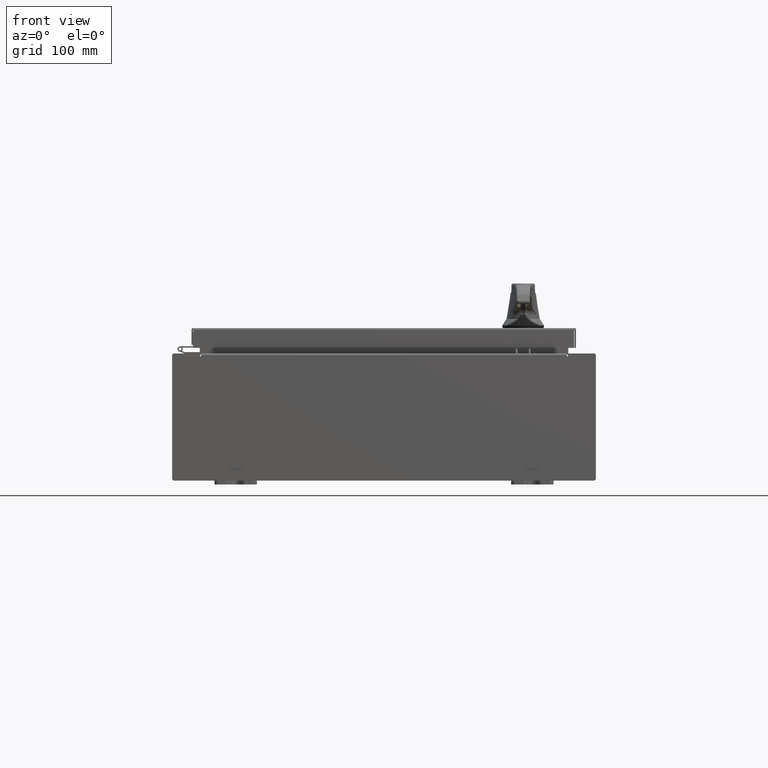
[diagram: clean part render]
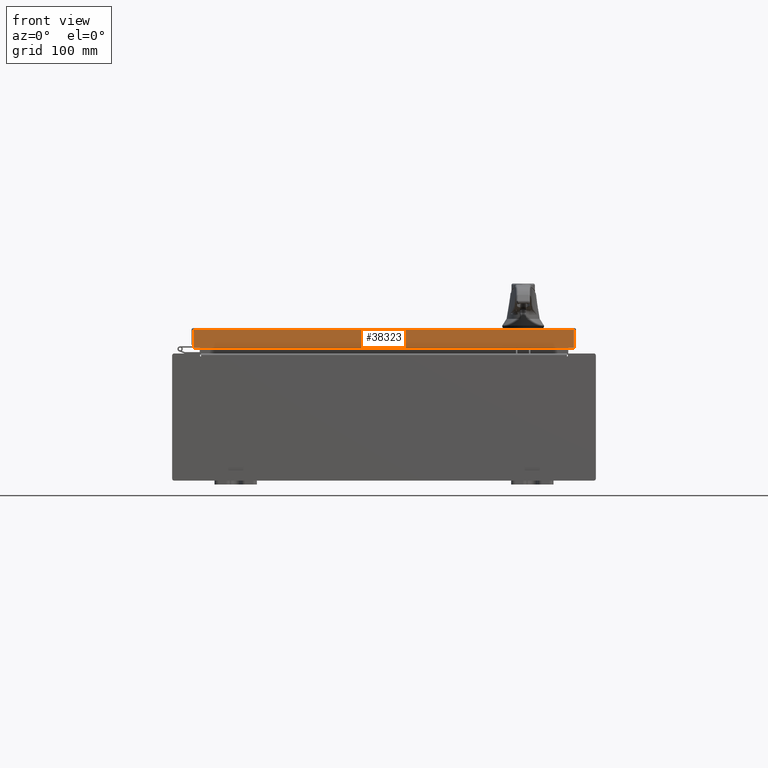
[diagram: same view with one face highlighted and labeled with its STEP entity id]
A machine part, front view. The second image highlights one B-rep face of the part: STEP entity #38323.
In plain terms, the highlighted planar face has unit normal (-0, 1, -0).
Its self-contained STEP definition (entity closure, byte-faithful):
#2893 = VERTEX_POINT ( 'NONE', #25573 ) ;
#4388 = DIRECTION ( 'NONE',  ( -1.000000000000000000, -1.203722403024570700E-016, 1.203722403024570700E-016 ) ) ;
#8788 = VECTOR ( 'NONE', #29191, 39.37007874015748100 ) ;
#11094 = EDGE_LOOP ( 'NONE', ( #36382, #71322, #70045, #52253 ) ) ;
#17404 = PLANE ( 'NONE',  #76811 ) ;
#18193 = LINE ( 'NONE', #73659, #81811 ) ;
#24296 = VERTEX_POINT ( 'NONE', #99581 ) ;
#24436 = FACE_OUTER_BOUND ( 'NONE', #11094, .T. ) ;
#25573 = CARTESIAN_POINT ( 'NONE',  ( 8.989157864376267100, -11.09400000000000300, -0.9376999999999997600 ) ) ;
#26342 = VERTEX_POINT ( 'NONE', #98940 ) ;
#27408 = VECTOR ( 'NONE', #46455, 39.37007874015748100 ) ;
#29191 = DIRECTION ( 'NONE',  ( 1.000000000000000000, 1.203722403024570700E-016, -1.203722403024570700E-016 ) ) ;
#31805 = LINE ( 'NONE', #37563, #8788 ) ;
#35712 = EDGE_CURVE ( 'NONE', #26342, #2893, #50375, .T. ) ;
#36382 = ORIENTED_EDGE ( 'NONE', *, *, #57804, .F. ) ;
#37563 = CARTESIAN_POINT ( 'NONE',  ( 9.077999999999999400, -11.09400000000000100, -0.08770000000000008300 ) ) ;
#38323 = ADVANCED_FACE ( 'NONE', ( #24436 ), #17404, .F. ) ;
#43535 = DIRECTION ( 'NONE',  ( 0.0000000000000000000, 2.532419924601866100E-015, 1.000000000000000000 ) ) ;
#46455 = DIRECTION ( 'NONE',  ( -0.0000000000000000000, -2.532419924601866100E-015, -1.000000000000000000 ) ) ;
#50375 = LINE ( 'NONE', #63489, #27408 ) ;
#52253 = ORIENTED_EDGE ( 'NONE', *, *, #35712, .F. ) ;
#52966 = CARTESIAN_POINT ( 'NONE',  ( -8.989157864376267100, -11.09400000000000700, -0.9376999999999976500 ) ) ;
#55293 = DIRECTION ( 'NONE',  ( 0.0000000000000000000, -2.532419924601866100E-015, -1.000000000000000000 ) ) ;
#57804 = EDGE_CURVE ( 'NONE', #24296, #26342, #31805, .T. ) ;
#60565 = CARTESIAN_POINT ( 'NONE',  ( 1.335409633915462200E-015, -11.09400000000000100, 2.835548029954469000E-014 ) ) ;
#63489 = CARTESIAN_POINT ( 'NONE',  ( 8.989157864376267100, -11.09400000000000100, -0.07469999999999980800 ) ) ;
#70045 = ORIENTED_EDGE ( 'NONE', *, *, #103129, .F. ) ;
#70866 = CARTESIAN_POINT ( 'NONE',  ( -8.989157864376267100, -11.09400000000000100, 2.835548029954469300E-014 ) ) ;
#71322 = ORIENTED_EDGE ( 'NONE', *, *, #100643, .T. ) ;
#73659 = CARTESIAN_POINT ( 'NONE',  ( 9.077999999999999400, -11.09400000000000300, -0.9376999999999997600 ) ) ;
#76811 = AXIS2_PLACEMENT_3D ( 'NONE', #60565, #95479, #43535 ) ;
#81811 = VECTOR ( 'NONE', #4388, 39.37007874015748100 ) ;
#95479 = DIRECTION ( 'NONE',  ( -1.203722403024573700E-016, 1.000000000000000000, -2.532419924601866100E-015 ) ) ;
#98940 = CARTESIAN_POINT ( 'NONE',  ( 8.989157864376267100, -11.09400000000000100, -0.08769999999999898700 ) ) ;
#99433 = VERTEX_POINT ( 'NONE', #52966 ) ;
#99581 = CARTESIAN_POINT ( 'NONE',  ( -8.989157864376267100, -11.09400000000000100, -0.08769999999999791900 ) ) ;
#99809 = VECTOR ( 'NONE', #55293, 39.37007874015748100 ) ;
#100643 = EDGE_CURVE ( 'NONE', #24296, #99433, #102516, .T. ) ;
#102516 = LINE ( 'NONE', #70866, #99809 ) ;
#103129 = EDGE_CURVE ( 'NONE', #2893, #99433, #18193, .T. ) ;